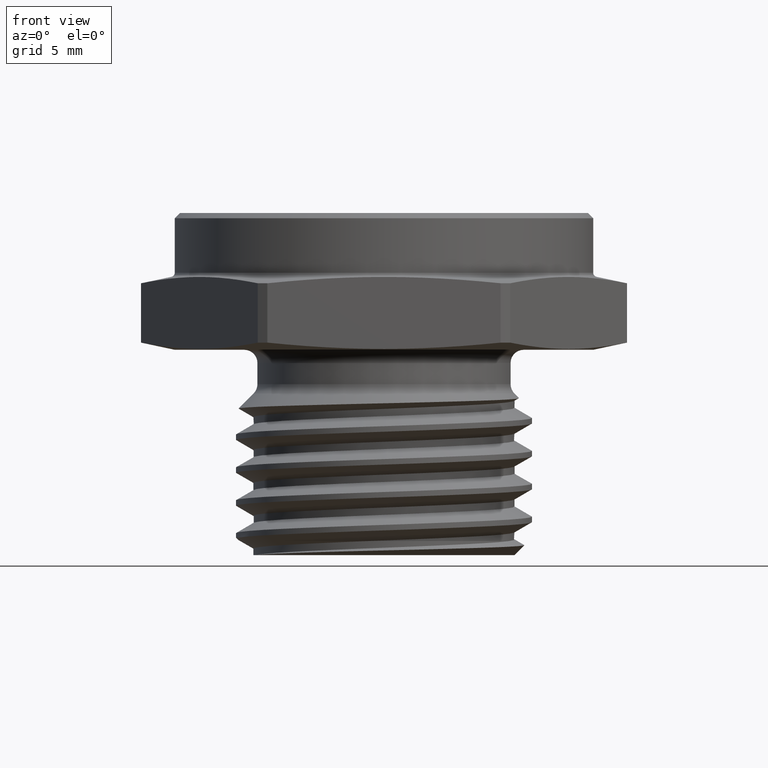
[diagram: clean part render]
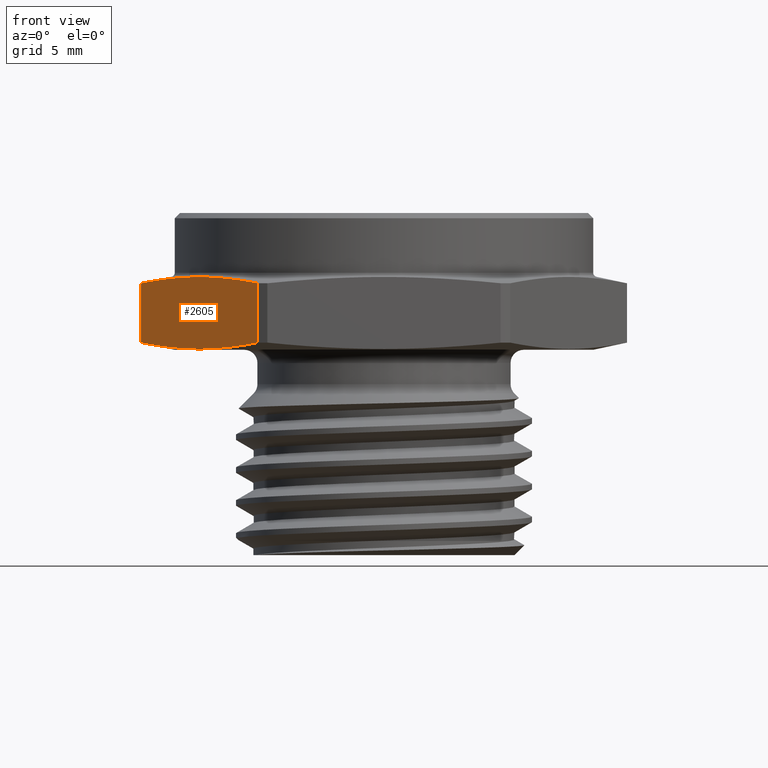
[diagram: same view with one face highlighted and labeled with its STEP entity id]
A machine part, front view. The second image highlights one B-rep face of the part: STEP entity #2605.
In plain terms, the highlighted planar face has unit normal (0.866, 0.5, -0).
Its self-contained STEP definition (entity closure, byte-faithful):
#428 = ORIENTED_EDGE ( 'NONE', *, *, #853, .F. ) ;
#429 = ORIENTED_EDGE ( 'NONE', *, *, #857, .F. ) ;
#430 = ORIENTED_EDGE ( 'NONE', *, *, #1311, .F. ) ;
#431 = ORIENTED_EDGE ( 'NONE', *, *, #860, .F. ) ;
#580 = LINE ( 'NONE', #2685, #587 ) ;
#587 = VECTOR ( 'NONE', #2693, 39.37007874015748100 ) ;
#684 = LINE ( 'NONE', #1599, #692 ) ;
#692 = VECTOR ( 'NONE', #1601, 39.37007874015748100 ) ;
#754 = FACE_OUTER_BOUND ( 'NONE', #1271, .T. ) ;
#853 = EDGE_CURVE ( 'NONE', #2541, #1270, #580, .T. ) ;
#857 = EDGE_CURVE ( 'NONE', #2547, #2541, #1397, .T. ) ;
#860 = EDGE_CURVE ( 'NONE', #1270, #2543, #1400, .T. ) ;
#981 = AXIS2_PLACEMENT_3D ( 'NONE', #1793, #1798, #1799 ) ;
#1270 = VERTEX_POINT ( 'NONE', #1570 ) ;
#1271 = EDGE_LOOP ( 'NONE', ( #428, #429, #430, #431 ) ) ;
#1311 = EDGE_CURVE ( 'NONE', #2543, #2547, #684, .T. ) ;
#1397 = B_SPLINE_CURVE_WITH_KNOTS ( 'NONE', 3,
 ( #2705, #2700, #2701, #2706, #2707 ),
 .UNSPECIFIED., .F., .F.,
 ( 4, 1, 4 ),
 ( 1.960092707742473500E-006, 0.005630175714661479600, 0.01125839133661521800 ),
 .UNSPECIFIED. ) ;
#1400 = B_SPLINE_CURVE_WITH_KNOTS ( 'NONE', 3,
 ( #2724, #2716, #2718, #2725, #2726 ),
 .UNSPECIFIED., .F., .F.,
 ( 4, 1, 4 ),
 ( 1.960092708403469600E-006, 0.005630175714662139600, 0.01125839133661587700 ),
 .UNSPECIFIED. ) ;
#1570 = CARTESIAN_POINT ( 'NONE',  ( -0.2399486424312457800, -0.3943967601019043300, 0.01363629372569560200 ) ) ;
#1599 = CARTESIAN_POINT ( 'NONE',  ( -0.4615319346341489300, -0.01060323989809576700, 1.356806347704086400E-017 ) ) ;
#1601 = DIRECTION ( 'NONE',  ( 1.224646799147349800E-016, 0.0000000000000000000, 1.000000000000000000 ) ) ;
#1661 = CARTESIAN_POINT ( 'NONE',  ( -0.2399486424312457800, -0.3943967601019043300, 0.1263637062743045700 ) ) ;
#1663 = CARTESIAN_POINT ( 'NONE',  ( -0.4615319346341489300, -0.01060323989809576700, 0.01363629372569551700 ) ) ;
#1667 = CARTESIAN_POINT ( 'NONE',  ( -0.4615319346341490400, -0.01060323989809576800, 0.1263637062743046000 ) ) ;
#1791 = PLANE ( 'NONE',  #981 ) ;
#1793 = CARTESIAN_POINT ( 'NONE',  ( -0.4676537180435966200, -2.054050067523590100E-016, 0.1400000000000000100 ) ) ;
#1798 = DIRECTION ( 'NONE',  ( 0.8660254037844383700, 0.5000000000000004400, -0.0000000000000000000 ) ) ;
#1799 = DIRECTION ( 'NONE',  ( -0.5000000000000004400, 0.8660254037844383700, 0.0000000000000000000 ) ) ;
#2541 = VERTEX_POINT ( 'NONE', #1661 ) ;
#2543 = VERTEX_POINT ( 'NONE', #1663 ) ;
#2547 = VERTEX_POINT ( 'NONE', #1667 ) ;
#2605 = ADVANCED_FACE ( 'NONE', ( #754 ), #1791, .F. ) ;
#2685 = CARTESIAN_POINT ( 'NONE',  ( -0.2399486424312457200, -0.3943967601019042800, -1.356806347704086400E-017 ) ) ;
#2693 = DIRECTION ( 'NONE',  ( -1.224646799147349800E-016, -0.0000000000000000000, -1.000000000000000000 ) ) ;
#2700 = CARTESIAN_POINT ( 'NONE',  ( -0.4246013859336649800, -0.07456882659873055600, 0.1338991866869406200 ) ) ;
#2701 = CARTESIAN_POINT ( 'NONE',  ( -0.3507402885326972900, -0.2025000000000001500, 0.1429124648880092100 ) ) ;
#2705 = CARTESIAN_POINT ( 'NONE',  ( -0.4615319346341490400, -0.01060323989809576800, 0.1263637062743046000 ) ) ;
#2706 = CARTESIAN_POINT ( 'NONE',  ( -0.2768791911317297100, -0.3304311734012698200, 0.1338991866869406500 ) ) ;
#2707 = CARTESIAN_POINT ( 'NONE',  ( -0.2399486424312457800, -0.3943967601019043300, 0.1263637062743045700 ) ) ;
#2716 = CARTESIAN_POINT ( 'NONE',  ( -0.2768791911317295400, -0.3304311734012696000, 0.006100813313059548800 ) ) ;
#2718 = CARTESIAN_POINT ( 'NONE',  ( -0.3507402885326971800, -0.2025000000000002100, -0.002912464888008980600 ) ) ;
#2724 = CARTESIAN_POINT ( 'NONE',  ( -0.2399486424312457800, -0.3943967601019043300, 0.01363629372569560200 ) ) ;
#2725 = CARTESIAN_POINT ( 'NONE',  ( -0.4246013859336653100, -0.07456882659873057000, 0.006100813313059559200 ) ) ;
#2726 = CARTESIAN_POINT ( 'NONE',  ( -0.4615319346341489300, -0.01060323989809576700, 0.01363629372569551700 ) ) ;